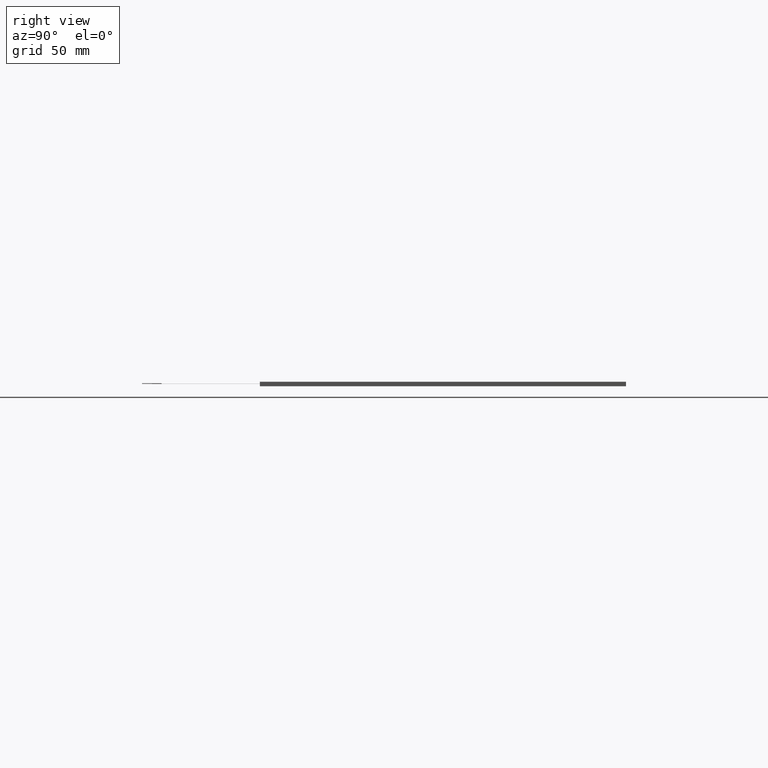
[diagram: clean part render]
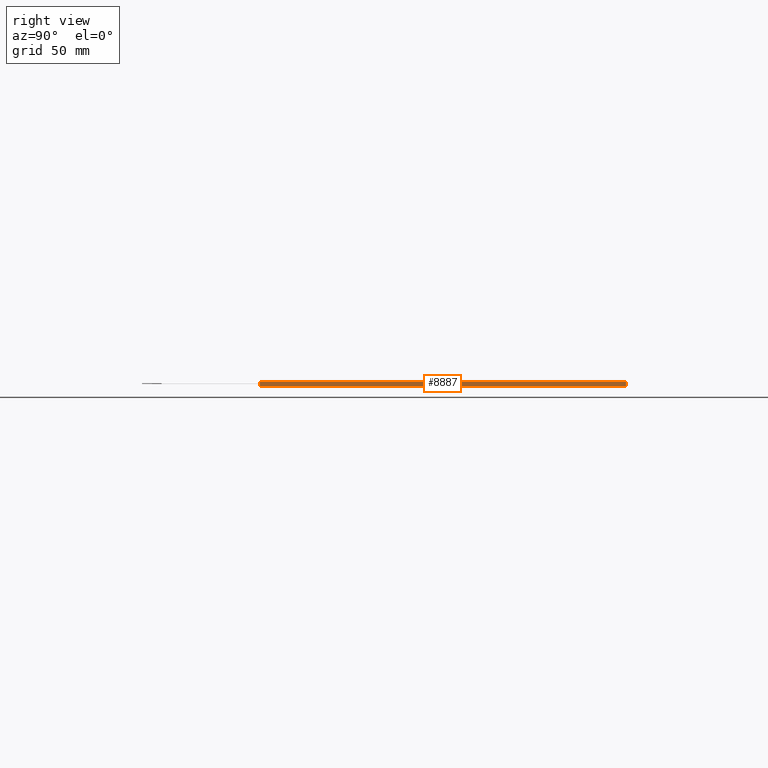
[diagram: same view with one face highlighted and labeled with its STEP entity id]
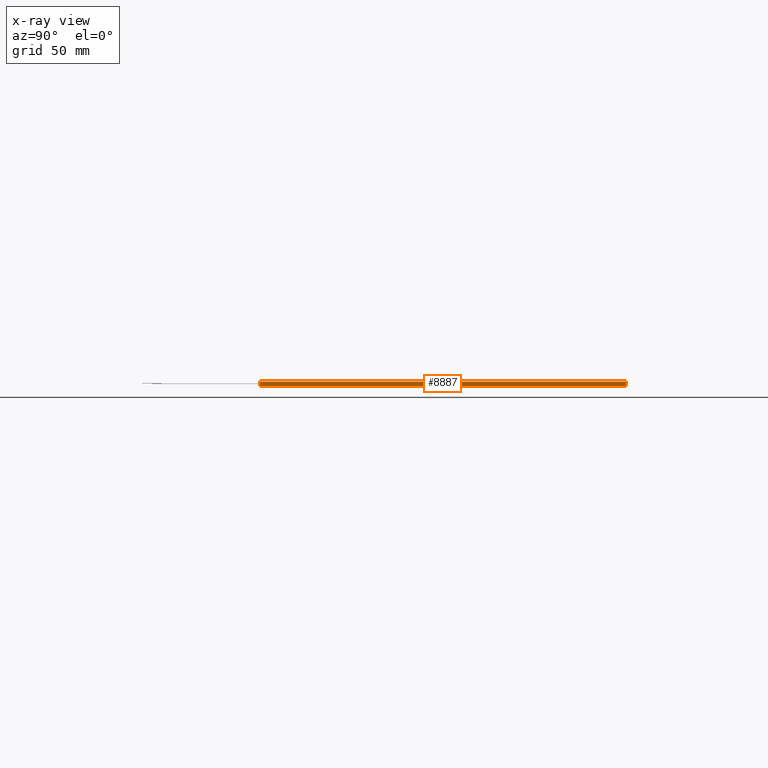
[diagram: x-ray of the same camera — body ghosted, the highlighted face saturated]
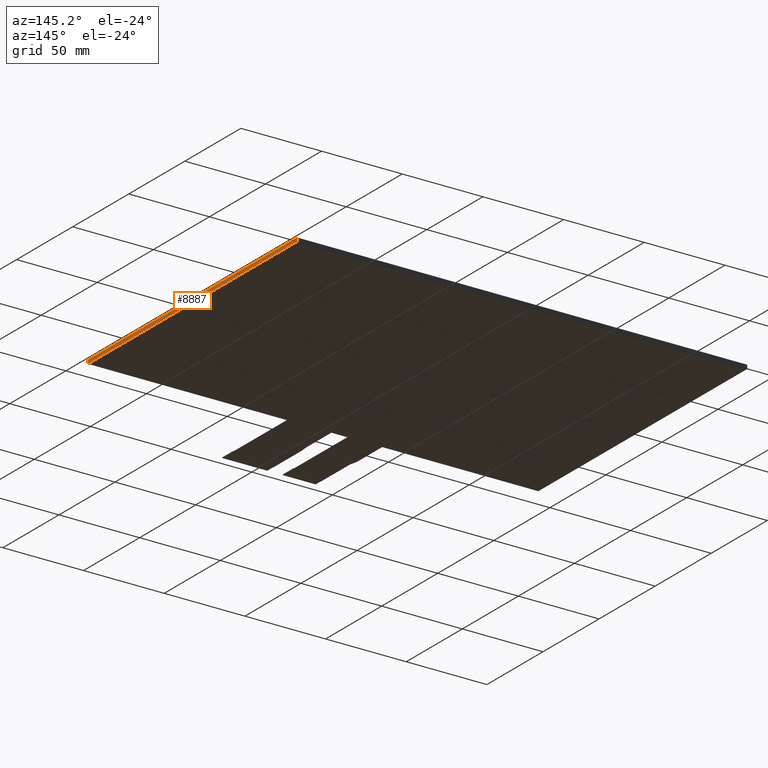
[diagram: same view with one face highlighted and labeled with its STEP entity id]
A machine part, right view. The second image highlights one B-rep face of the part: STEP entity #8887.
The next image is the same camera in x-ray: the body ghosted, the highlighted face saturated — about 0% of this face is hidden behind the body in this view.
A second angle (auxiliary view) of the same face is appended — the face is thin or edge-on in the first view.
In plain terms, the highlighted planar face has unit normal (1, 0, 0).
Its self-contained STEP definition (entity closure, byte-faithful):
#549=PLANE('',#9337);
#971=FACE_OUTER_BOUND('',#1397,.T.);
#1397=EDGE_LOOP('',(#8449,#8450,#8451,#8452));
#2632=LINE('',#13927,#3872);
#2637=LINE('',#13937,#3877);
#2638=LINE('',#13940,#3878);
#2639=LINE('',#13941,#3879);
#3872=VECTOR('',#11422,10.);
#3877=VECTOR('',#11431,10.);
#3878=VECTOR('',#11434,10.);
#3879=VECTOR('',#11435,10.);
#4713=VERTEX_POINT('',#13920);
#4716=VERTEX_POINT('',#13925);
#4719=VERTEX_POINT('',#13935);
#4720=VERTEX_POINT('',#13939);
#5960=EDGE_CURVE('',#4716,#4713,#2632,.T.);
#5965=EDGE_CURVE('',#4716,#4719,#2637,.T.);
#5966=EDGE_CURVE('',#4720,#4719,#2638,.T.);
#5967=EDGE_CURVE('',#4713,#4720,#2639,.T.);
#8449=ORIENTED_EDGE('',*,*,#5960,.F.);
#8450=ORIENTED_EDGE('',*,*,#5965,.T.);
#8451=ORIENTED_EDGE('',*,*,#5966,.F.);
#8452=ORIENTED_EDGE('',*,*,#5967,.F.);
#8887=ADVANCED_FACE('',(#971),#549,.T.);
#9337=AXIS2_PLACEMENT_3D('',#13938,#11432,#11433);
#11422=DIRECTION('',(-9.53492667418277E-17,1.,0.));
#11431=DIRECTION('',(0.,0.,-1.));
#11432=DIRECTION('center_axis',(1.,9.53492667418277E-17,0.));
#11433=DIRECTION('ref_axis',(9.53492667418277E-17,-1.,0.));
#11434=DIRECTION('',(9.53492667418277E-17,-1.,0.));
#11435=DIRECTION('',(0.,0.,-1.));
#13920=CARTESIAN_POINT('',(138.5,89.6000000000001,0.));
#13925=CARTESIAN_POINT('',(138.5,-96.7,0.));
#13927=CARTESIAN_POINT('',(138.5,-96.7,0.));
#13935=CARTESIAN_POINT('',(138.5,-96.7,-2.35));
#13937=CARTESIAN_POINT('',(138.5,-96.7,0.));
#13938=CARTESIAN_POINT('Origin',(138.5,89.6000000000001,0.));
#13939=CARTESIAN_POINT('',(138.5,89.6000000000001,-2.35));
#13940=CARTESIAN_POINT('',(138.5,-96.7,-2.35));
#13941=CARTESIAN_POINT('',(138.5,89.6000000000001,0.));